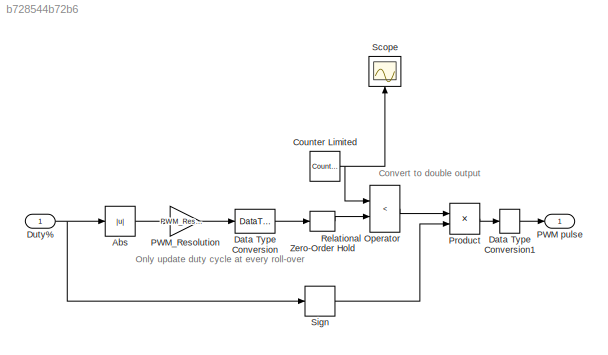
MODEL slx_b728544b72b6
KIND model
CONFIG AbsTol = auto
CONFIG EnableMultiTasking = off
CONFIG FixedStep = 1/(PWM_Resolution*PWM_Frequency)
CONFIG InitFcn = Parameters_Model\nParameters_Simulation\nParameters_Controller
CONFIG MaxStep = auto
CONFIG MinStep = auto
CONFIG PreLoadFcn = modelDir = fileparts(get_param(bdroot, 'FileName'));\naddpath(fullfile(modelDir,'../../Parameters'));\n\nParameters_Model\nParameters_Simulation\nParameters_Controller
CONFIG RelTol = 1e-3
CONFIG SampleTimeConstraint = Unconstrained
CONFIG Solver = VariableStepAuto
CONFIG SolverName = VariableStepAuto
CONFIG StartTime = 0.0
CONFIG StopTime = 10.0
BLOCK [Abs] Abs
  SaturateOnIntegerOverflow = off
BLOCK [Reference] Counter Limited  REF=simulink/Sources/Counter
Limited
  Ports = [0, 1]
  SourceBlock = simulink/Sources/Counter\nLimited
  SourceProductBaseCode = SL
  SourceProductName = Simulink
  SourceType = Counter Limited
BLOCK [DataTypeConversion] Data Type Conversion
  RndMeth = Round
  SaturateOnIntegerOverflow = off
BLOCK [DataTypeConversion] Data Type Conversion1
  RndMeth = Round
  SaturateOnIntegerOverflow = off
BLOCK [Inport] Duty%
  IconDisplay = Port number
  OutDataTypeStr = double
BLOCK [Outport] PWM pulse
  IconDisplay = Port number
  OutDataTypeStr = int8
  VectorParamsAs1DForOutWhenUnconnected = off
BLOCK [Gain] PWM_Resolution
  Gain = PWM_Resolution
  OutDataTypeStr = Inherit: Inherit via internal rule
  ParamDataTypeStr = Inherit: Inherit via internal rule
  SaturateOnIntegerOverflow = off
BLOCK [Product] Product
  InputSameDT = off
  OutDataTypeStr = Inherit: Inherit via internal rule
  Ports = [2, 1]
  RndMeth = Floor
  SaturateOnIntegerOverflow = off
BLOCK [RelationalOperator] Relational Operator
  InputSameDT = off
  Operator = <
  OutDataTypeStr = boolean
  Ports = [2, 1]
  RndMeth = Simplest
BLOCK [Scope] Scope
  Floating = off
  NumInputPorts = 1
  Ports = [1]
  ScopeSpecificationString = Simulink.scopes.TimeScopeBlockCfg('CurrentConfiguration', extmgr.ConfigurationSet(extmgr.Configuration('Core','General UI',true),extmgr.Configuration('Core','Source UI',true),extmgr.Configuration('Sources','WiredSimulink',true),extmgr.Configuration('Visuals','Time Domain',true,'SerializedDisplays',{struct('MinYLimReal','-12.375','MaxYLimReal','111.375','YLabelReal','','MinYLimMag','0.00000','MaxYL...<+1413ch>
BLOCK [Signum] Sign
BLOCK [ZeroOrderHold] Zero-Order Hold
  SampleTime = 1/PWM_Frequency
ANNOTATION (root): Convert to double output
ANNOTATION (root): Only update duty cycle at every roll-over
LINE Abs:1 -> PWM_Resolution:1
NET Counter Limited:1 -> Relational Operator:1, Scope:1
LINE Data Type Conversion1:1 -> PWM pulse:1
LINE Data Type Conversion:1 -> Zero-Order Hold:1
NET Duty%:1 -> Abs:1, Sign:1
LINE PWM_Resolution:1 -> Data Type Conversion:1
LINE Product:1 -> Data Type Conversion1:1
LINE Relational Operator:1 -> Product:1
LINE Sign:1 -> Product:2
LINE Zero-Order Hold:1 -> Relational Operator:2
note: NET lines group one-source signal fan-out (src -> all destinations, sorted); 1:1 wires keep LINE
